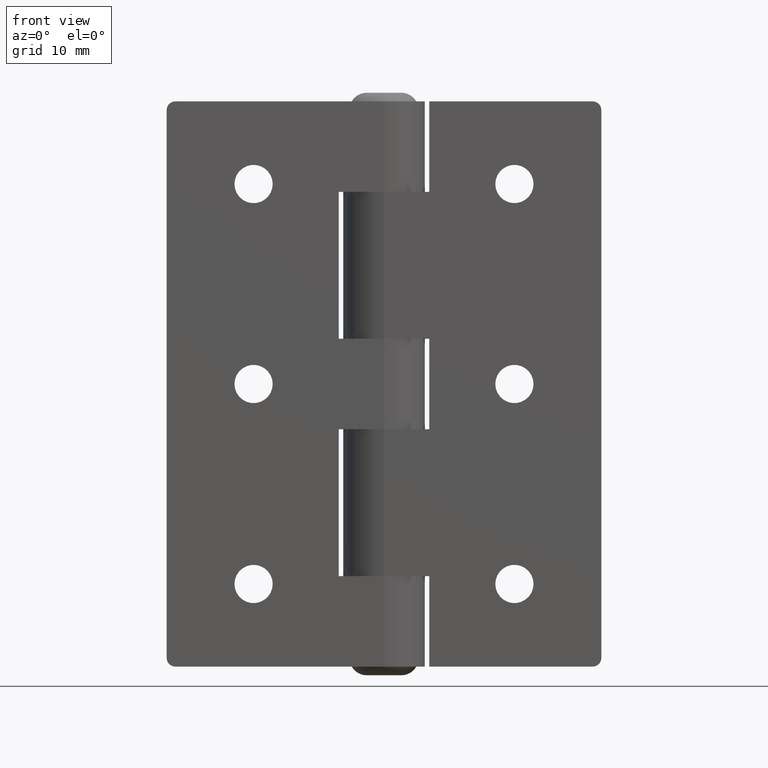
[diagram: clean part render]
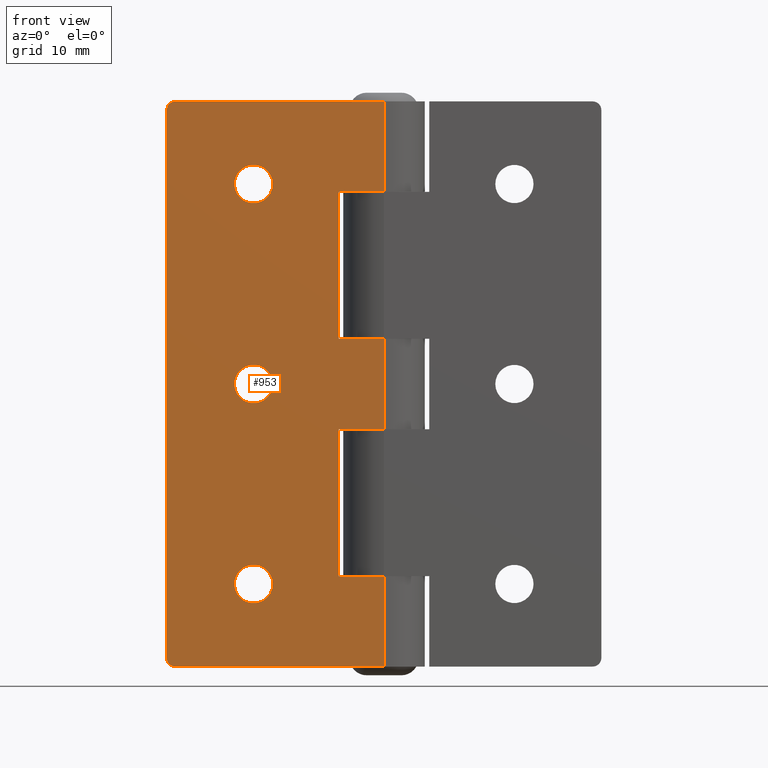
[diagram: same view with one face highlighted and labeled with its STEP entity id]
A machine part, front view. The second image highlights one B-rep face of the part: STEP entity #953.
In plain terms, the highlighted planar face has unit normal (0, -1, 0).
Its self-contained STEP definition (entity closure, byte-faithful):
#34=FACE_BOUND('',#150,.T.);
#35=FACE_BOUND('',#151,.T.);
#36=FACE_BOUND('',#152,.T.);
#57=PLANE('',#1023);
#91=FACE_OUTER_BOUND('',#149,.T.);
#149=EDGE_LOOP('',(#700,#701,#702,#703,#704,#705,#706,#707,#708,#709,#710,
#711,#712,#713));
#150=EDGE_LOOP('',(#714));
#151=EDGE_LOOP('',(#715));
#152=EDGE_LOOP('',(#716));
#223=LINE('',#1429,#309);
#237=LINE('',#1468,#323);
#239=LINE('',#1476,#325);
#240=LINE('',#1478,#326);
#241=LINE('',#1480,#327);
#242=LINE('',#1482,#328);
#243=LINE('',#1484,#329);
#244=LINE('',#1486,#330);
#245=LINE('',#1488,#331);
#246=LINE('',#1490,#332);
#247=LINE('',#1491,#333);
#248=LINE('',#1492,#334);
#309=VECTOR('',#1130,24.);
#323=VECTOR('',#1160,24.);
#325=VECTOR('',#1168,10.4);
#326=VECTOR('',#1169,5.2);
#327=VECTOR('',#1170,16.9);
#328=VECTOR('',#1171,5.2);
#329=VECTOR('',#1172,10.4);
#330=VECTOR('',#1173,5.2);
#331=VECTOR('',#1174,16.9);
#332=VECTOR('',#1175,5.2);
#333=VECTOR('',#1176,10.4);
#334=VECTOR('',#1177,63.);
#392=CIRCLE('',#1009,1.);
#399=CIRCLE('',#1019,1.);
#402=CIRCLE('',#1024,2.2);
#403=CIRCLE('',#1025,2.2);
#404=CIRCLE('',#1026,2.2);
#439=VERTEX_POINT('',#1415);
#440=VERTEX_POINT('',#1417);
#444=VERTEX_POINT('',#1427);
#459=VERTEX_POINT('',#1461);
#460=VERTEX_POINT('',#1462);
#461=VERTEX_POINT('',#1467);
#464=VERTEX_POINT('',#1475);
#465=VERTEX_POINT('',#1477);
#466=VERTEX_POINT('',#1479);
#467=VERTEX_POINT('',#1481);
#468=VERTEX_POINT('',#1483);
#469=VERTEX_POINT('',#1485);
#470=VERTEX_POINT('',#1487);
#471=VERTEX_POINT('',#1489);
#472=VERTEX_POINT('',#1493);
#473=VERTEX_POINT('',#1495);
#474=VERTEX_POINT('',#1497);
#533=EDGE_CURVE('',#439,#440,#392,.T.);
#539=EDGE_CURVE('',#444,#439,#223,.T.);
#555=EDGE_CURVE('',#459,#460,#399,.T.);
#558=EDGE_CURVE('',#460,#461,#237,.T.);
#562=EDGE_CURVE('',#444,#464,#239,.T.);
#563=EDGE_CURVE('',#464,#465,#240,.T.);
#564=EDGE_CURVE('',#465,#466,#241,.T.);
#565=EDGE_CURVE('',#466,#467,#242,.T.);
#566=EDGE_CURVE('',#467,#468,#243,.T.);
#567=EDGE_CURVE('',#468,#469,#244,.T.);
#568=EDGE_CURVE('',#469,#470,#245,.T.);
#569=EDGE_CURVE('',#470,#471,#246,.T.);
#570=EDGE_CURVE('',#471,#461,#247,.T.);
#571=EDGE_CURVE('',#440,#459,#248,.T.);
#572=EDGE_CURVE('',#472,#472,#402,.T.);
#573=EDGE_CURVE('',#473,#473,#403,.T.);
#574=EDGE_CURVE('',#474,#474,#404,.T.);
#700=ORIENTED_EDGE('',*,*,#533,.F.);
#701=ORIENTED_EDGE('',*,*,#539,.F.);
#702=ORIENTED_EDGE('',*,*,#562,.T.);
#703=ORIENTED_EDGE('',*,*,#563,.T.);
#704=ORIENTED_EDGE('',*,*,#564,.T.);
#705=ORIENTED_EDGE('',*,*,#565,.T.);
#706=ORIENTED_EDGE('',*,*,#566,.T.);
#707=ORIENTED_EDGE('',*,*,#567,.T.);
#708=ORIENTED_EDGE('',*,*,#568,.T.);
#709=ORIENTED_EDGE('',*,*,#569,.T.);
#710=ORIENTED_EDGE('',*,*,#570,.T.);
#711=ORIENTED_EDGE('',*,*,#558,.F.);
#712=ORIENTED_EDGE('',*,*,#555,.F.);
#713=ORIENTED_EDGE('',*,*,#571,.F.);
#714=ORIENTED_EDGE('',*,*,#572,.T.);
#715=ORIENTED_EDGE('',*,*,#573,.T.);
#716=ORIENTED_EDGE('',*,*,#574,.T.);
#953=ADVANCED_FACE('',(#91,#34,#35,#36),#57,.T.);
#1009=AXIS2_PLACEMENT_3D('',#1418,#1119,#1120);
#1019=AXIS2_PLACEMENT_3D('',#1463,#1154,#1155);
#1023=AXIS2_PLACEMENT_3D('',#1474,#1166,#1167);
#1024=AXIS2_PLACEMENT_3D('',#1494,#1178,#1179);
#1025=AXIS2_PLACEMENT_3D('',#1496,#1180,#1181);
#1026=AXIS2_PLACEMENT_3D('',#1498,#1182,#1183);
#1119=DIRECTION('center_axis',(-2.99760216648792E-16,1.,0.));
#1120=DIRECTION('ref_axis',(-0.707106781186548,0.,-0.707106781186548));
#1130=DIRECTION('',(-1.,-2.99760216648792E-16,0.));
#1154=DIRECTION('center_axis',(-2.99760216648792E-16,1.,0.));
#1155=DIRECTION('ref_axis',(-0.707106781186548,0.,0.707106781186548));
#1160=DIRECTION('',(1.,2.99760216648792E-16,0.));
#1166=DIRECTION('center_axis',(2.99760216648792E-16,-1.,0.));
#1167=DIRECTION('ref_axis',(1.,2.99760216648792E-16,0.));
#1168=DIRECTION('',(0.,0.,1.));
#1169=DIRECTION('',(-1.,-2.99760216648792E-16,0.));
#1170=DIRECTION('',(-1.31387340192326E-16,-3.93846975609603E-32,1.));
#1171=DIRECTION('',(1.,2.99760216648792E-16,0.));
#1172=DIRECTION('',(0.,0.,1.));
#1173=DIRECTION('',(-1.,-2.99760216648792E-16,-4.48574959444508E-16));
#1174=DIRECTION('',(0.,0.,1.));
#1175=DIRECTION('',(1.,2.99760216648792E-16,2.24287479722254E-16));
#1176=DIRECTION('',(0.,0.,1.));
#1177=DIRECTION('',(0.,0.,1.));
#1178=DIRECTION('center_axis',(-2.99760216648792E-16,1.,0.));
#1179=DIRECTION('ref_axis',(1.,3.99680288865056E-16,0.));
#1180=DIRECTION('center_axis',(-2.99760216648792E-16,1.,0.));
#1181=DIRECTION('ref_axis',(1.,3.99680288865056E-16,0.));
#1182=DIRECTION('center_axis',(-2.99760216648792E-16,1.,0.));
#1183=DIRECTION('ref_axis',(1.,3.99680288865056E-16,0.));
#1415=CARTESIAN_POINT('',(-24.,-7.19424519957101E-15,-32.5));
#1417=CARTESIAN_POINT('',(-25.,-7.49400541621981E-15,-31.5));
#1418=CARTESIAN_POINT('Origin',(-24.,-7.49400541621981E-15,-31.5));
#1427=CARTESIAN_POINT('',(0.,0.,-32.5));
#1429=CARTESIAN_POINT('',(-25.,-7.49400541621981E-15,-32.5));
#1461=CARTESIAN_POINT('',(-25.,-7.49400541621981E-15,31.5));
#1462=CARTESIAN_POINT('',(-24.,-7.19424519957101E-15,32.5));
#1463=CARTESIAN_POINT('Origin',(-24.,-7.49400541621981E-15,31.5));
#1467=CARTESIAN_POINT('',(0.,0.,32.5));
#1468=CARTESIAN_POINT('',(-25.,-7.49400541621981E-15,32.5));
#1474=CARTESIAN_POINT('Origin',(-25.,-7.49400541621981E-15,0.));
#1475=CARTESIAN_POINT('',(1.85305200950611E-15,0.,-22.1));
#1476=CARTESIAN_POINT('',(1.85305200950611E-15,0.,0.));
#1477=CARTESIAN_POINT('',(-5.2,-1.55875312657372E-15,-22.1));
#1478=CARTESIAN_POINT('',(-10.15,-3.04256619898524E-15,-22.1));
#1479=CARTESIAN_POINT('',(-5.2,-1.55875312657372E-15,-5.2));
#1480=CARTESIAN_POINT('',(-5.2,-1.55875312657372E-15,-11.05));
#1481=CARTESIAN_POINT('',(1.85305200950611E-15,0.,-5.2));
#1482=CARTESIAN_POINT('',(-15.1,-4.52637927139676E-15,-5.2));
#1483=CARTESIAN_POINT('',(1.85305200950611E-15,0.,5.2));
#1484=CARTESIAN_POINT('',(1.85305200950611E-15,0.,0.));
#1485=CARTESIAN_POINT('',(-5.2,-1.55875312657372E-15,5.2));
#1486=CARTESIAN_POINT('',(-10.15,-3.04256619898524E-15,5.19999999999999));
#1487=CARTESIAN_POINT('',(-5.2,-1.55875312657372E-15,22.1));
#1488=CARTESIAN_POINT('',(-5.2,-1.55875312657372E-15,2.6));
#1489=CARTESIAN_POINT('',(1.85305200950611E-15,0.,22.1));
#1490=CARTESIAN_POINT('',(-15.1,-4.52637927139676E-15,22.1));
#1491=CARTESIAN_POINT('',(1.85305200950611E-15,0.,0.));
#1492=CARTESIAN_POINT('',(-25.,-7.49400541621981E-15,0.));
#1493=CARTESIAN_POINT('',(-17.2,-4.48752146553488E-15,2.69422295812418E-16));
#1494=CARTESIAN_POINT('Origin',(-15.,-3.60822483003176E-15,0.));
#1495=CARTESIAN_POINT('',(-17.2,-4.48752146553488E-15,23.));
#1496=CARTESIAN_POINT('Origin',(-15.,-3.60822483003176E-15,23.));
#1497=CARTESIAN_POINT('',(-17.2,-4.48752146553488E-15,-23.));
#1498=CARTESIAN_POINT('Origin',(-15.,-3.60822483003176E-15,-23.));